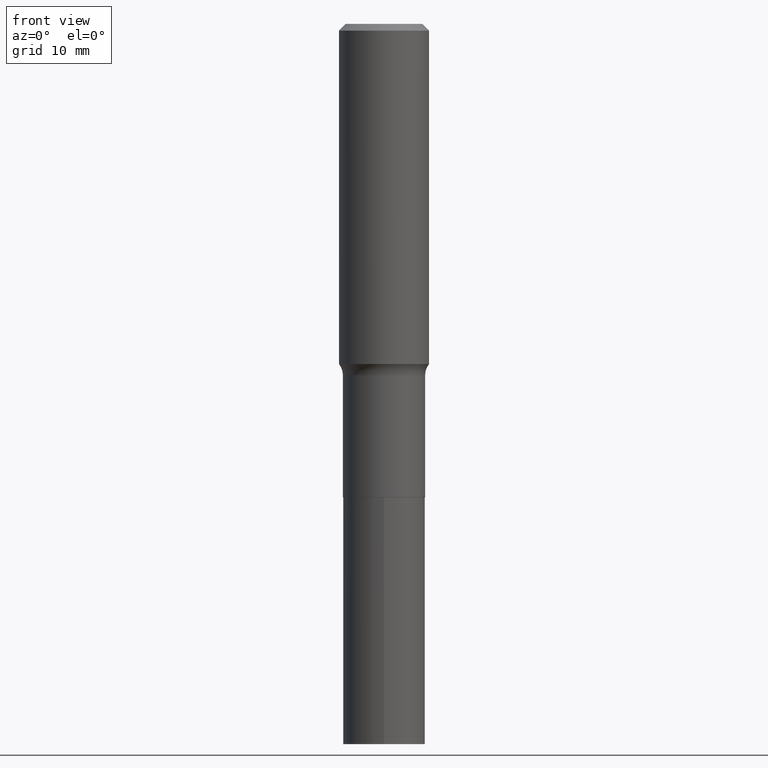
[diagram: clean part render]
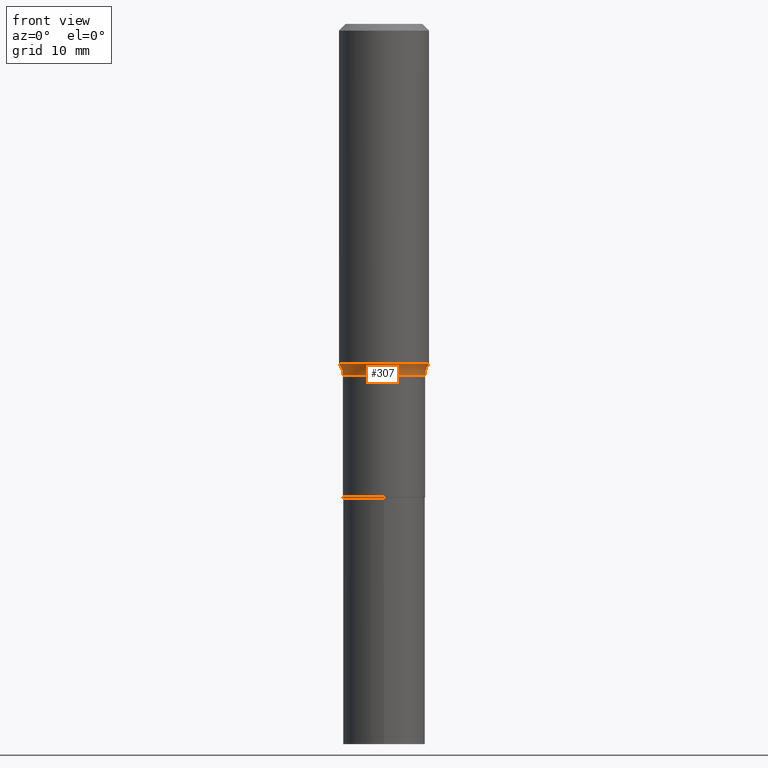
[diagram: same view with one face highlighted and labeled with its STEP entity id]
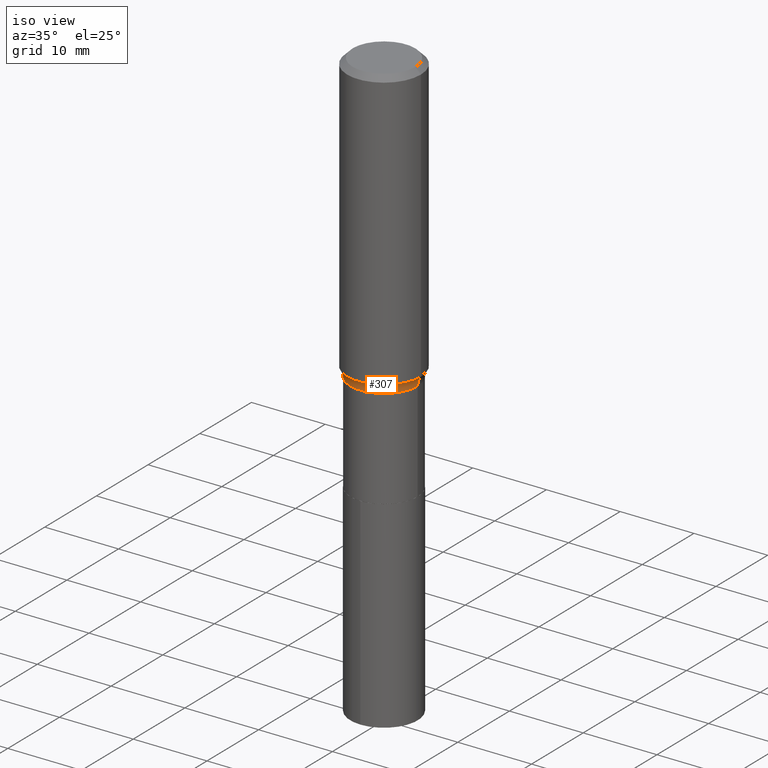
[diagram: same view with one face highlighted and labeled with its STEP entity id]
A machine part, front view. The second image highlights one B-rep face of the part: STEP entity #307.
A second angle (iso view) of the same face is appended — the face is thin or edge-on in the first view.
In plain terms, the highlighted toroidal blend (fillet) surface has major radius 6.5964 mm and minor (blend) radius 2.032 mm.
Its self-contained STEP definition (entity closure, byte-faithful):
#3 = DIRECTION ( 'NONE',  ( 1.000000000000000000, -6.982962677686264344E-15, 0.000000000000000000 ) ) ;
#5 = AXIS2_PLACEMENT_3D ( 'NONE', #443, #333, #18 ) ;
#13 = AXIS2_PLACEMENT_3D ( 'NONE', #74, #295, #326 ) ;
#18 = DIRECTION ( 'NONE',  ( 1.000000000000000000, -6.982962677686266711E-15, 0.000000000000000000 ) ) ;
#20 = DIRECTION ( 'NONE',  ( 1.000000000000000000, -6.982962677686262766E-15, 0.000000000000000000 ) ) ;
#34 = AXIS2_PLACEMENT_3D ( 'NONE', #349, #169, #459 ) ;
#72 = CARTESIAN_POINT ( 'NONE',  ( 3.757951914464700156E-29, -5.365359373400262850E-15, -1.536700000000000399 ) ) ;
#74 = CARTESIAN_POINT ( 'NONE',  ( -0.2596999999999999864, -3.520079888631283158E-15, -1.536700000000000399 ) ) ;
#75 = CIRCLE ( 'NONE', #134, 0.07999999999999996003 ) ;
#78 = DIRECTION ( 'NONE',  ( -6.982962677686266711E-15, -1.000000000000000000, 3.491481338843145583E-15 ) ) ;
#96 = VERTEX_POINT ( 'NONE', #138 ) ;
#128 = VERTEX_POINT ( 'NONE', #297 ) ;
#134 = AXIS2_PLACEMENT_3D ( 'NONE', #370, #78, #20 ) ;
#138 = CARTESIAN_POINT ( 'NONE',  ( 0.1796999999999999431, -6.620197766580484580E-15, -1.536700000000000399 ) ) ;
#139 = EDGE_LOOP ( 'NONE', ( #385, #461, #317, #283 ) ) ;
#144 = CIRCLE ( 'NONE', #13, 0.07999999999999996003 ) ;
#156 = FACE_OUTER_BOUND ( 'NONE', #139, .T. ) ;
#169 = DIRECTION ( 'NONE',  ( -2.445468806185136597E-29, 3.491481338843145583E-15, 1.000000000000000000 ) ) ;
#172 = EDGE_CURVE ( 'NONE', #128, #96, #293, .T. ) ;
#179 = VERTEX_POINT ( 'NONE', #215 ) ;
#182 = EDGE_CURVE ( 'NONE', #179, #128, #144, .T. ) ;
#198 = CARTESIAN_POINT ( 'NONE',  ( 0.1968500000000001360, -6.567140387868782202E-15, -1.487203762769277127 ) ) ;
#202 = CIRCLE ( 'NONE', #5, 0.1968500000000001915 ) ;
#212 = EDGE_CURVE ( 'NONE', #179, #280, #202, .T. ) ;
#215 = CARTESIAN_POINT ( 'NONE',  ( -0.1968500000000001360, -3.793840809422482017E-15, -1.487203762769277127 ) ) ;
#238 = EDGE_CURVE ( 'NONE', #280, #96, #75, .T. ) ;
#253 = TOROIDAL_SURFACE ( 'NONE', #34, 0.2596999999999999864, 0.07999999999999998779 ) ;
#280 = VERTEX_POINT ( 'NONE', #198 ) ;
#283 = ORIENTED_EDGE ( 'NONE', *, *, #238, .F. ) ;
#293 = CIRCLE ( 'NONE', #441, 0.1796999999999999431 ) ;
#295 = DIRECTION ( 'NONE',  ( 7.105427357601001859E-15, 1.000000000000000000, -3.491481338843145583E-15 ) ) ;
#297 = CARTESIAN_POINT ( 'NONE',  ( -0.1796999999999999431, -5.019692150308830103E-15, -1.536700000000000399 ) ) ;
#307 = ADVANCED_FACE ( 'NONE', ( #156 ), #253, .F. ) ;
#317 = ORIENTED_EDGE ( 'NONE', *, *, #172, .T. ) ;
#326 = DIRECTION ( 'NONE',  ( -1.000000000000000000, 7.105427357601001859E-15, 0.000000000000000000 ) ) ;
#333 = DIRECTION ( 'NONE',  ( -2.445468806185136597E-29, 3.491481338843145583E-15, 1.000000000000000000 ) ) ;
#349 = CARTESIAN_POINT ( 'NONE',  ( 3.757951914464700156E-29, -5.365359373400262850E-15, -1.536700000000000399 ) ) ;
#370 = CARTESIAN_POINT ( 'NONE',  ( 0.2596999999999999864, -7.178834780795387021E-15, -1.536700000000000399 ) ) ;
#385 = ORIENTED_EDGE ( 'NONE', *, *, #212, .F. ) ;
#388 = DIRECTION ( 'NONE',  ( -2.445468806185136597E-29, 3.491481338843145583E-15, 1.000000000000000000 ) ) ;
#441 = AXIS2_PLACEMENT_3D ( 'NONE', #72, #388, #3 ) ;
#443 = CARTESIAN_POINT ( 'NONE',  ( 3.636910410293427302E-29, -5.192544184766240594E-15, -1.487203762769277127 ) ) ;
#459 = DIRECTION ( 'NONE',  ( 1.000000000000000000, -6.982962677686268288E-15, 4.883557194083114022E-29 ) ) ;
#461 = ORIENTED_EDGE ( 'NONE', *, *, #182, .T. ) ;